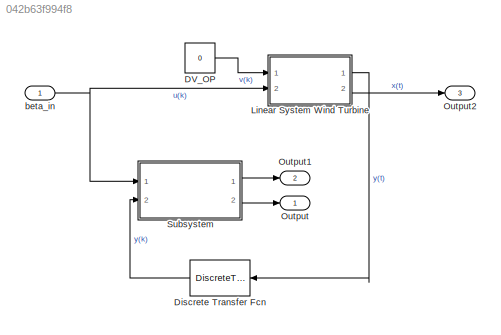
MODEL slx_042b63f994f8
KIND model
CONFIG AbsTol = auto
CONFIG EnableMultiTasking = off
CONFIG FixedStep = STEP_SIZE
CONFIG MaxStep = auto
CONFIG MinStep = auto
CONFIG RelTol = 1e-3
CONFIG SampleTimeConstraint = Unconstrained
CONFIG SolverName = ode4
CONFIG StartTime = 0.0
CONFIG StopTime = TIME_SIM
BLOCK [Constant] DV_OP
  Value = 0
BLOCK [DiscreteTransferFcn] Discrete Transfer Fcn
  Denominator = 1
  InputPortMap = u0
  NameLocation = top
  Ports = [1, 1]
  SampleTime = Ts
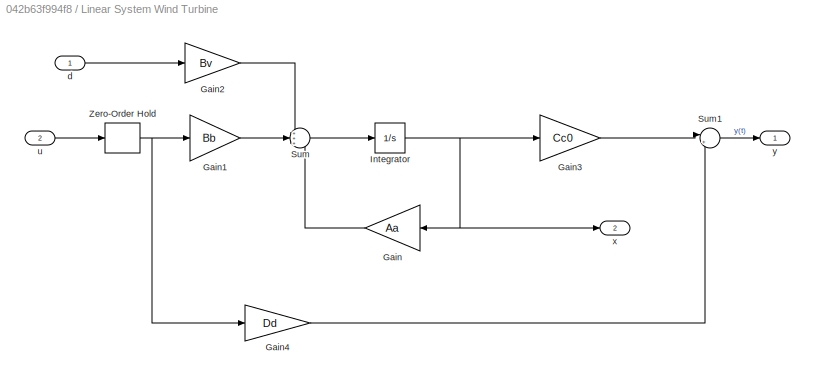
BLOCK [SubSystem] Linear System Wind Turbine
  Ports = [2, 2]
  RequestExecContextInheritance = off
BLOCK [Gain] Linear System Wind Turbine/Gain
  Gain = Aa
  Multiplication = Matrix(K*u) (u vector)
  NameLocation = top
BLOCK [Gain] Linear System Wind Turbine/Gain1
  Gain = Bb
  Multiplication = Matrix(K*u) (u vector)
BLOCK [Gain] Linear System Wind Turbine/Gain2
  Gain = Bv
  Multiplication = Matrix(K*u) (u vector)
BLOCK [Gain] Linear System Wind Turbine/Gain3
  Gain = Cc0
  Multiplication = Matrix(K*u) (u vector)
BLOCK [Gain] Linear System Wind Turbine/Gain4
  Gain = Dd
  Multiplication = Matrix(K*u) (u vector)
BLOCK [Integrator] Linear System Wind Turbine/Integrator
  Ports = [1, 1]
BLOCK [Sum] Linear System Wind Turbine/Sum
  Inputs = +++
  Ports = [3, 1]
BLOCK [Sum] Linear System Wind Turbine/Sum1
  Inputs = |++
  Ports = [2, 1]
BLOCK [ZeroOrderHold] Linear System Wind Turbine/Zero-Order Hold
  SampleTime = Ts
BLOCK [Inport] Linear System Wind Turbine/d
BLOCK [Inport] Linear System Wind Turbine/u
  Port = 2
BLOCK [Outport] Linear System Wind Turbine/x
  Port = 2
BLOCK [Outport] Linear System Wind Turbine/y
BLOCK [Outport] Output
BLOCK [Outport] Output1
  Port = 2
BLOCK [Outport] Output2
  Port = 3
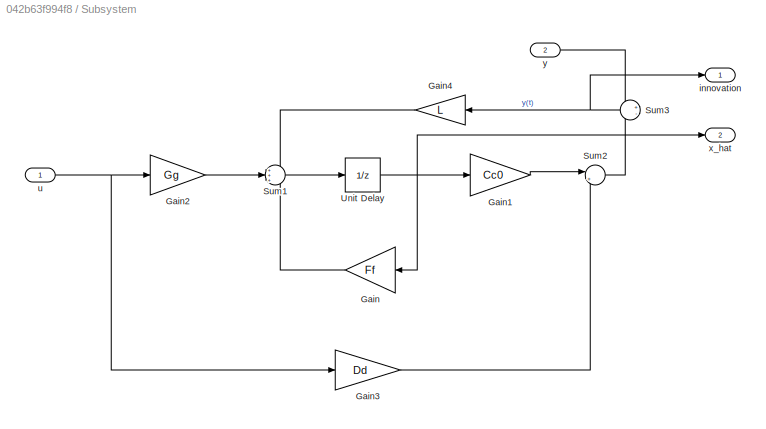
BLOCK [SubSystem] Subsystem
  Ports = [2, 2]
  RequestExecContextInheritance = off
BLOCK [Gain] Subsystem/Gain
  Gain = Ff
  Multiplication = Matrix(K*u) (u vector)
  NameLocation = top
BLOCK [Gain] Subsystem/Gain1
  Gain = Cc0
  Multiplication = Matrix(K*u) (u vector)
BLOCK [Gain] Subsystem/Gain2
  Gain = Gg
  Multiplication = Matrix(K*u) (u vector)
BLOCK [Gain] Subsystem/Gain3
  Gain = Dd
  Multiplication = Matrix(K*u) (u vector)
BLOCK [Gain] Subsystem/Gain4
  Gain = L
  Multiplication = Matrix(K*u) (u vector)
  NameLocation = top
BLOCK [Sum] Subsystem/Sum1
  Inputs = +++
  Ports = [3, 1]
BLOCK [Sum] Subsystem/Sum2
  Inputs = |++
  Ports = [2, 1]
BLOCK [Sum] Subsystem/Sum3
  Inputs = +-
  NameLocation = top
  Ports = [2, 1]
BLOCK [UnitDelay] Subsystem/Unit Delay
  HasFrameUpgradeWarning = on
  SampleTime = Ts
BLOCK [Outport] Subsystem/innovation
BLOCK [Inport] Subsystem/u
BLOCK [Outport] Subsystem/x_hat
  Port = 2
BLOCK [Inport] Subsystem/y
  Port = 2
BLOCK [Inport] beta_in
LINE DV_OP:1 -> Linear System Wind Turbine:1
LINE Discrete Transfer Fcn:1 -> Subsystem:2
LINE Linear System Wind Turbine/Gain1:1 -> Linear System Wind Turbine/Sum:2
LINE Linear System Wind Turbine/Gain2:1 -> Linear System Wind Turbine/Sum:1
LINE Linear System Wind Turbine/Gain3:1 -> Linear System Wind Turbine/Sum1:1
LINE Linear System Wind Turbine/Gain4:1 -> Linear System Wind Turbine/Sum1:2
LINE Linear System Wind Turbine/Gain:1 -> Linear System Wind Turbine/Sum:3
NET Linear System Wind Turbine/Integrator:1 -> Linear System Wind Turbine/Gain3:1, Linear System Wind Turbine/Gain:1, Linear System Wind Turbine/x:1
LINE Linear System Wind Turbine/Sum1:1 -> Linear System Wind Turbine/y:1
LINE Linear System Wind Turbine/Sum:1 -> Linear System Wind Turbine/Integrator:1
NET Linear System Wind Turbine/Zero-Order Hold:1 -> Linear System Wind Turbine/Gain1:1, Linear System Wind Turbine/Gain4:1
LINE Linear System Wind Turbine/d:1 -> Linear System Wind Turbine/Gain2:1
LINE Linear System Wind Turbine/u:1 -> Linear System Wind Turbine/Zero-Order Hold:1
LINE Linear System Wind Turbine:1 -> Discrete Transfer Fcn:1
LINE Linear System Wind Turbine:2 -> Output2:1
LINE Subsystem/Gain1:1 -> Subsystem/Sum2:1
LINE Subsystem/Gain2:1 -> Subsystem/Sum1:2
LINE Subsystem/Gain3:1 -> Subsystem/Sum2:2
LINE Subsystem/Gain4:1 -> Subsystem/Sum1:1
LINE Subsystem/Gain:1 -> Subsystem/Sum1:3
LINE Subsystem/Sum1:1 -> Subsystem/Unit Delay:1
LINE Subsystem/Sum2:1 -> Subsystem/Sum3:2
NET Subsystem/Sum3:1 -> Subsystem/Gain4:1, Subsystem/innovation:1
NET Subsystem/Unit Delay:1 -> Subsystem/Gain1:1, Subsystem/Gain:1, Subsystem/x_hat:1
NET Subsystem/u:1 -> Subsystem/Gain2:1, Subsystem/Gain3:1
LINE Subsystem/y:1 -> Subsystem/Sum3:1
LINE Subsystem:1 -> Output1:1
LINE Subsystem:2 -> Output:1
NET beta_in:1 -> Linear System Wind Turbine:2, Subsystem:1
note: NET lines group one-source signal fan-out (src -> all destinations, sorted); 1:1 wires keep LINE
